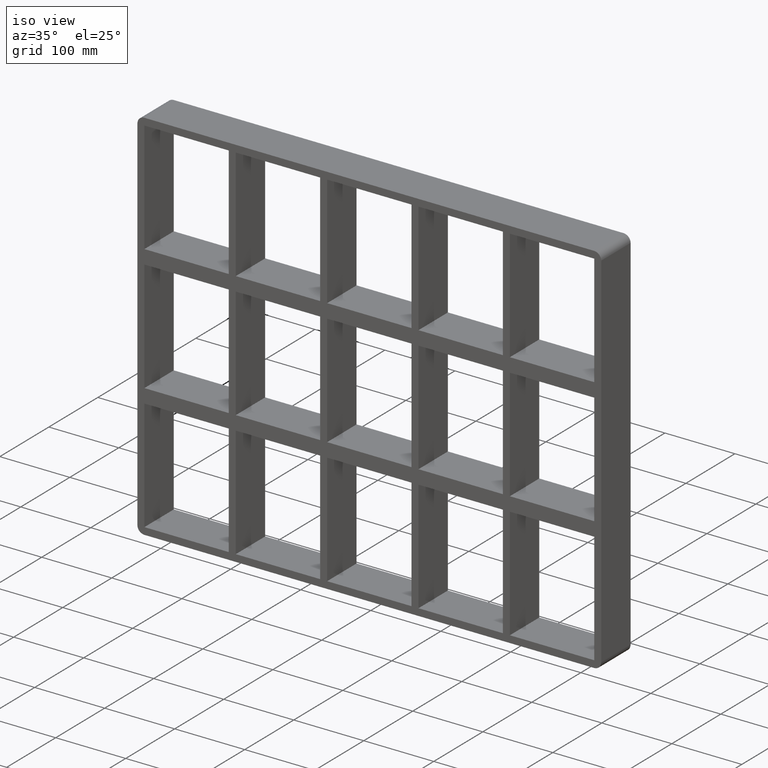
[diagram: clean part render]
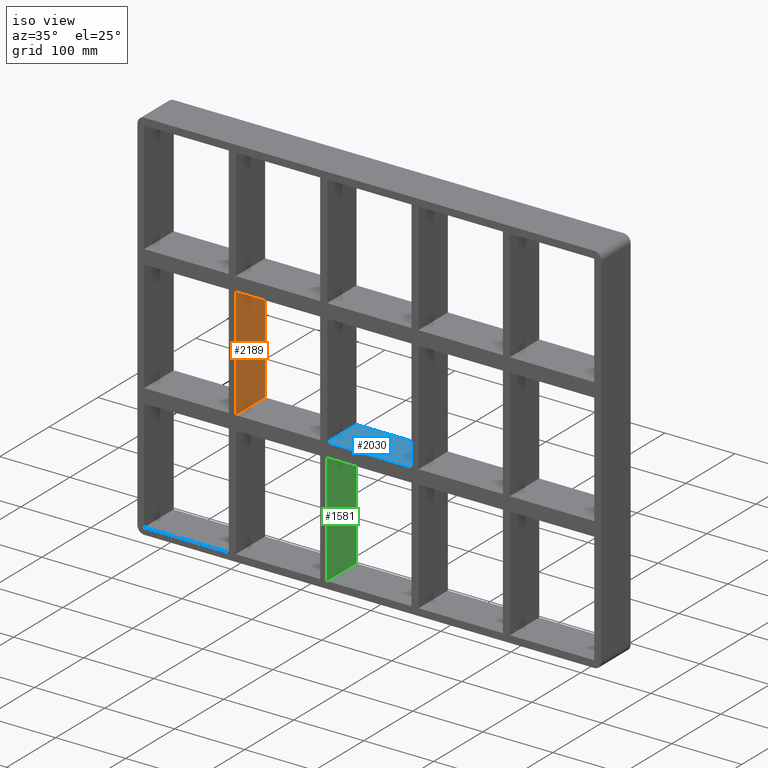
[diagram: same view with three faces highlighted in distinct colors, each labeled with its STEP entity id]
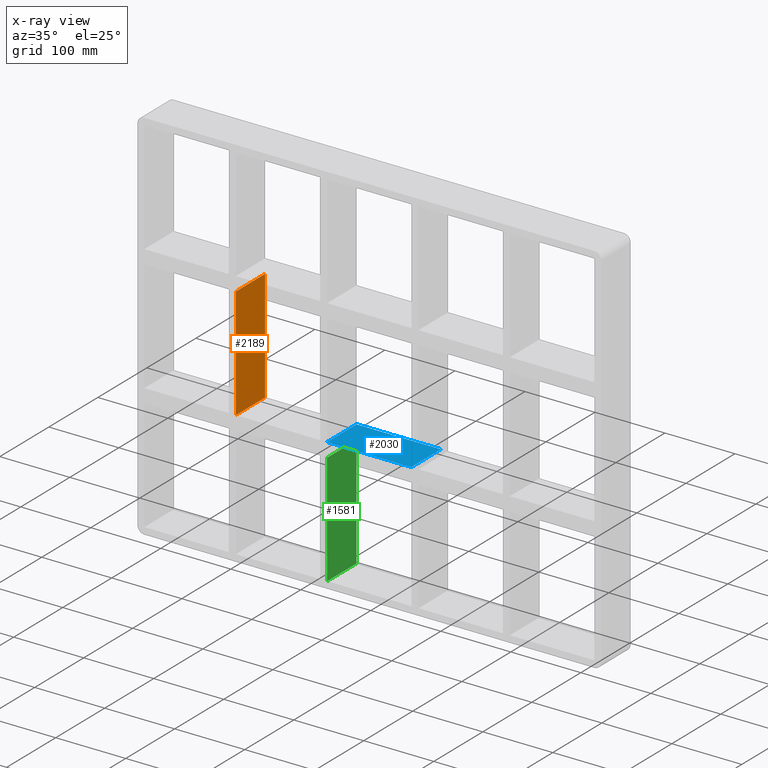
[diagram: x-ray of the same camera — body ghosted, the three highlighted faces saturated]
A machine part, iso view with three faces highlighted in distinct colors.
The next image is the same camera in x-ray (body ghosted, the three faces saturated) — at least one of them is partly hidden behind the body in this view.
Their STEP definitions:

[orange] entity #2189 — the highlighted planar face has unit normal (1, 0, 0).
#123=CARTESIAN_POINT('',(-190.75000000000728,-3.0,79.749999999990735));
#124=VERTEX_POINT('',#123);
#131=CARTESIAN_POINT('',(-190.75000000000728,57.0,79.749999999990735));
#132=VERTEX_POINT('',#131);
#133=CARTESIAN_POINT('',(-190.75000000000728,57.0,79.749999999990735));
#134=DIRECTION('',(0.0,-1.0,0.0));
#135=VECTOR('',#134,60.0);
#136=LINE('',#133,#135);
#137=EDGE_CURVE('',#132,#124,#136,.T.);
#1046=CARTESIAN_POINT('',(-190.75000000000728,57.0,-79.749999999999943));
#1047=VERTEX_POINT('',#1046);
#1048=CARTESIAN_POINT('',(-190.75000000000728,57.0,79.749999999990763));
#1049=DIRECTION('',(0.0,0.0,-1.0));
#1050=VECTOR('',#1049,159.49999999999065);
#1051=LINE('',#1048,#1050);
#1052=EDGE_CURVE('',#132,#1047,#1051,.T.);
#1784=CARTESIAN_POINT('',(-190.75000000000728,-3.0,-79.749999999999943));
#1785=VERTEX_POINT('',#1784);
#1792=CARTESIAN_POINT('',(-190.75000000000728,-3.0,79.749999999990763));
#1793=DIRECTION('',(0.0,0.0,-1.0));
#1794=VECTOR('',#1793,159.49999999999065);
#1795=LINE('',#1792,#1794);
#1796=EDGE_CURVE('',#124,#1785,#1795,.T.);
#2009=CARTESIAN_POINT('',(-190.75000000000728,-3.0,-79.749999999999943));
#2010=DIRECTION('',(0.0,1.0,0.0));
#2011=VECTOR('',#2010,60.0);
#2012=LINE('',#2009,#2011);
#2013=EDGE_CURVE('',#1785,#1047,#2012,.T.);
#2178=CARTESIAN_POINT('',(-190.75000000000728,-3.0,259.25));
#2179=DIRECTION('',(1.0,0.0,0.0));
#2180=DIRECTION('',(0.0,0.0,-1.0));
#2181=AXIS2_PLACEMENT_3D('',#2178,#2179,#2180);
#2182=PLANE('',#2181);
#2183=ORIENTED_EDGE('',*,*,#137,.T.);
#2184=ORIENTED_EDGE('',*,*,#1796,.T.);
#2185=ORIENTED_EDGE('',*,*,#2013,.T.);
#2186=ORIENTED_EDGE('',*,*,#1052,.F.);
#2187=EDGE_LOOP('',(#2183,#2184,#2185,#2186));
#2188=FACE_OUTER_BOUND('',#2187,.T.);
#2189=ADVANCED_FACE('',(#2188),#2182,.T.);

[blue] entity #2030 — the highlighted planar face has unit normal (0, 0, 1).
#1021=CARTESIAN_POINT('',(-60.250000000007269,57.0,-79.749999999999943));
#1022=VERTEX_POINT('',#1021);
#1029=CARTESIAN_POINT('',(60.249999999998678,57.0,-79.749999999999943));
#1030=VERTEX_POINT('',#1029);
#1031=CARTESIAN_POINT('',(-60.250000000007276,57.0,-79.749999999999943));
#1032=DIRECTION('',(1.0,0.0,0.0));
#1033=VECTOR('',#1032,120.50000000000597);
#1034=LINE('',#1031,#1033);
#1035=EDGE_CURVE('',#1022,#1030,#1034,.T.);
#1369=CARTESIAN_POINT('',(60.249999999998678,-3.0,-79.749999999999943));
#1370=VERTEX_POINT('',#1369);
#1371=CARTESIAN_POINT('',(60.2499999999987,-3.0,-79.749999999999943));
#1372=DIRECTION('',(0.0,1.0,0.0));
#1373=VECTOR('',#1372,60.0);
#1374=LINE('',#1371,#1373);
#1375=EDGE_CURVE('',#1370,#1030,#1374,.T.);
#1533=CARTESIAN_POINT('',(-60.250000000007269,-3.0,-79.749999999999943));
#1534=VERTEX_POINT('',#1533);
#1541=CARTESIAN_POINT('',(-60.25000000000729,57.0,-79.749999999999943));
#1542=DIRECTION('',(0.0,-1.0,0.0));
#1543=VECTOR('',#1542,60.0);
#1544=LINE('',#1541,#1543);
#1545=EDGE_CURVE('',#1022,#1534,#1544,.T.);
#1773=CARTESIAN_POINT('',(-60.250000000007276,-3.0,-79.749999999999943));
#1774=DIRECTION('',(1.0,0.0,0.0));
#1775=VECTOR('',#1774,120.50000000000597);
#1776=LINE('',#1773,#1775);
#1777=EDGE_CURVE('',#1534,#1370,#1776,.T.);
#2019=CARTESIAN_POINT('',(-321.24999999999972,-3.0,-79.749999999999943));
#2020=DIRECTION('',(0.0,0.0,1.0));
#2021=DIRECTION('',(1.0,0.0,0.0));
#2022=AXIS2_PLACEMENT_3D('',#2019,#2020,#2021);
#2023=PLANE('',#2022);
#2024=ORIENTED_EDGE('',*,*,#1375,.T.);
#2025=ORIENTED_EDGE('',*,*,#1035,.F.);
#2026=ORIENTED_EDGE('',*,*,#1545,.T.);
#2027=ORIENTED_EDGE('',*,*,#1777,.T.);
#2028=EDGE_LOOP('',(#2024,#2025,#2026,#2027));
#2029=FACE_OUTER_BOUND('',#2028,.T.);
#2030=ADVANCED_FACE('',(#2029),#2023,.T.);

[green] entity #1581 — the highlighted planar face has unit normal (1, 0, 0).
#1148=CARTESIAN_POINT('',(-60.250000000007269,57.0,-99.750000000009251));
#1149=VERTEX_POINT('',#1148);
#1156=CARTESIAN_POINT('',(-60.250000000007269,57.0,-259.2499999999842));
#1157=VERTEX_POINT('',#1156);
#1158=CARTESIAN_POINT('',(-60.250000000007269,57.0,-99.750000000009209));
#1159=DIRECTION('',(0.0,0.0,-1.0));
#1160=VECTOR('',#1159,159.49999999997499);
#1161=LINE('',#1158,#1160);
#1162=EDGE_CURVE('',#1149,#1157,#1161,.T.);
#1551=CARTESIAN_POINT('',(-60.250000000007269,-3.0,259.25));
#1552=DIRECTION('',(1.0,0.0,0.0));
#1553=DIRECTION('',(0.0,0.0,-1.0));
#1554=AXIS2_PLACEMENT_3D('',#1551,#1552,#1553);
#1555=PLANE('',#1554);
#1556=CARTESIAN_POINT('',(-60.250000000007269,-3.0,-99.750000000009251));
#1557=VERTEX_POINT('',#1556);
#1558=CARTESIAN_POINT('',(-60.25000000000729,-3.0,-99.750000000009294));
#1559=DIRECTION('',(0.0,1.0,0.0));
#1560=VECTOR('',#1559,60.0);
#1561=LINE('',#1558,#1560);
#1562=EDGE_CURVE('',#1557,#1149,#1561,.T.);
#1563=ORIENTED_EDGE('',*,*,#1562,.F.);
#1564=CARTESIAN_POINT('',(-60.250000000007269,-3.0,-259.24999999998414));
#1565=VERTEX_POINT('',#1564);
#1566=CARTESIAN_POINT('',(-60.250000000007269,-3.0,-99.750000000009209));
#1567=DIRECTION('',(0.0,0.0,-1.0));
#1568=VECTOR('',#1567,159.49999999997499);
#1569=LINE('',#1566,#1568);
#1570=EDGE_CURVE('',#1557,#1565,#1569,.T.);
#1571=ORIENTED_EDGE('',*,*,#1570,.T.);
#1572=CARTESIAN_POINT('',(-60.25000000000729,57.000000000000007,-259.25));
#1573=DIRECTION('',(0.0,-1.0,0.0));
#1574=VECTOR('',#1573,60.000000000000007);
#1575=LINE('',#1572,#1574);
#1576=EDGE_CURVE('',#1157,#1565,#1575,.T.);
#1577=ORIENTED_EDGE('',*,*,#1576,.F.);
#1578=ORIENTED_EDGE('',*,*,#1162,.F.);
#1579=EDGE_LOOP('',(#1563,#1571,#1577,#1578));
#1580=FACE_OUTER_BOUND('',#1579,.T.);
#1581=ADVANCED_FACE('',(#1580),#1555,.T.);